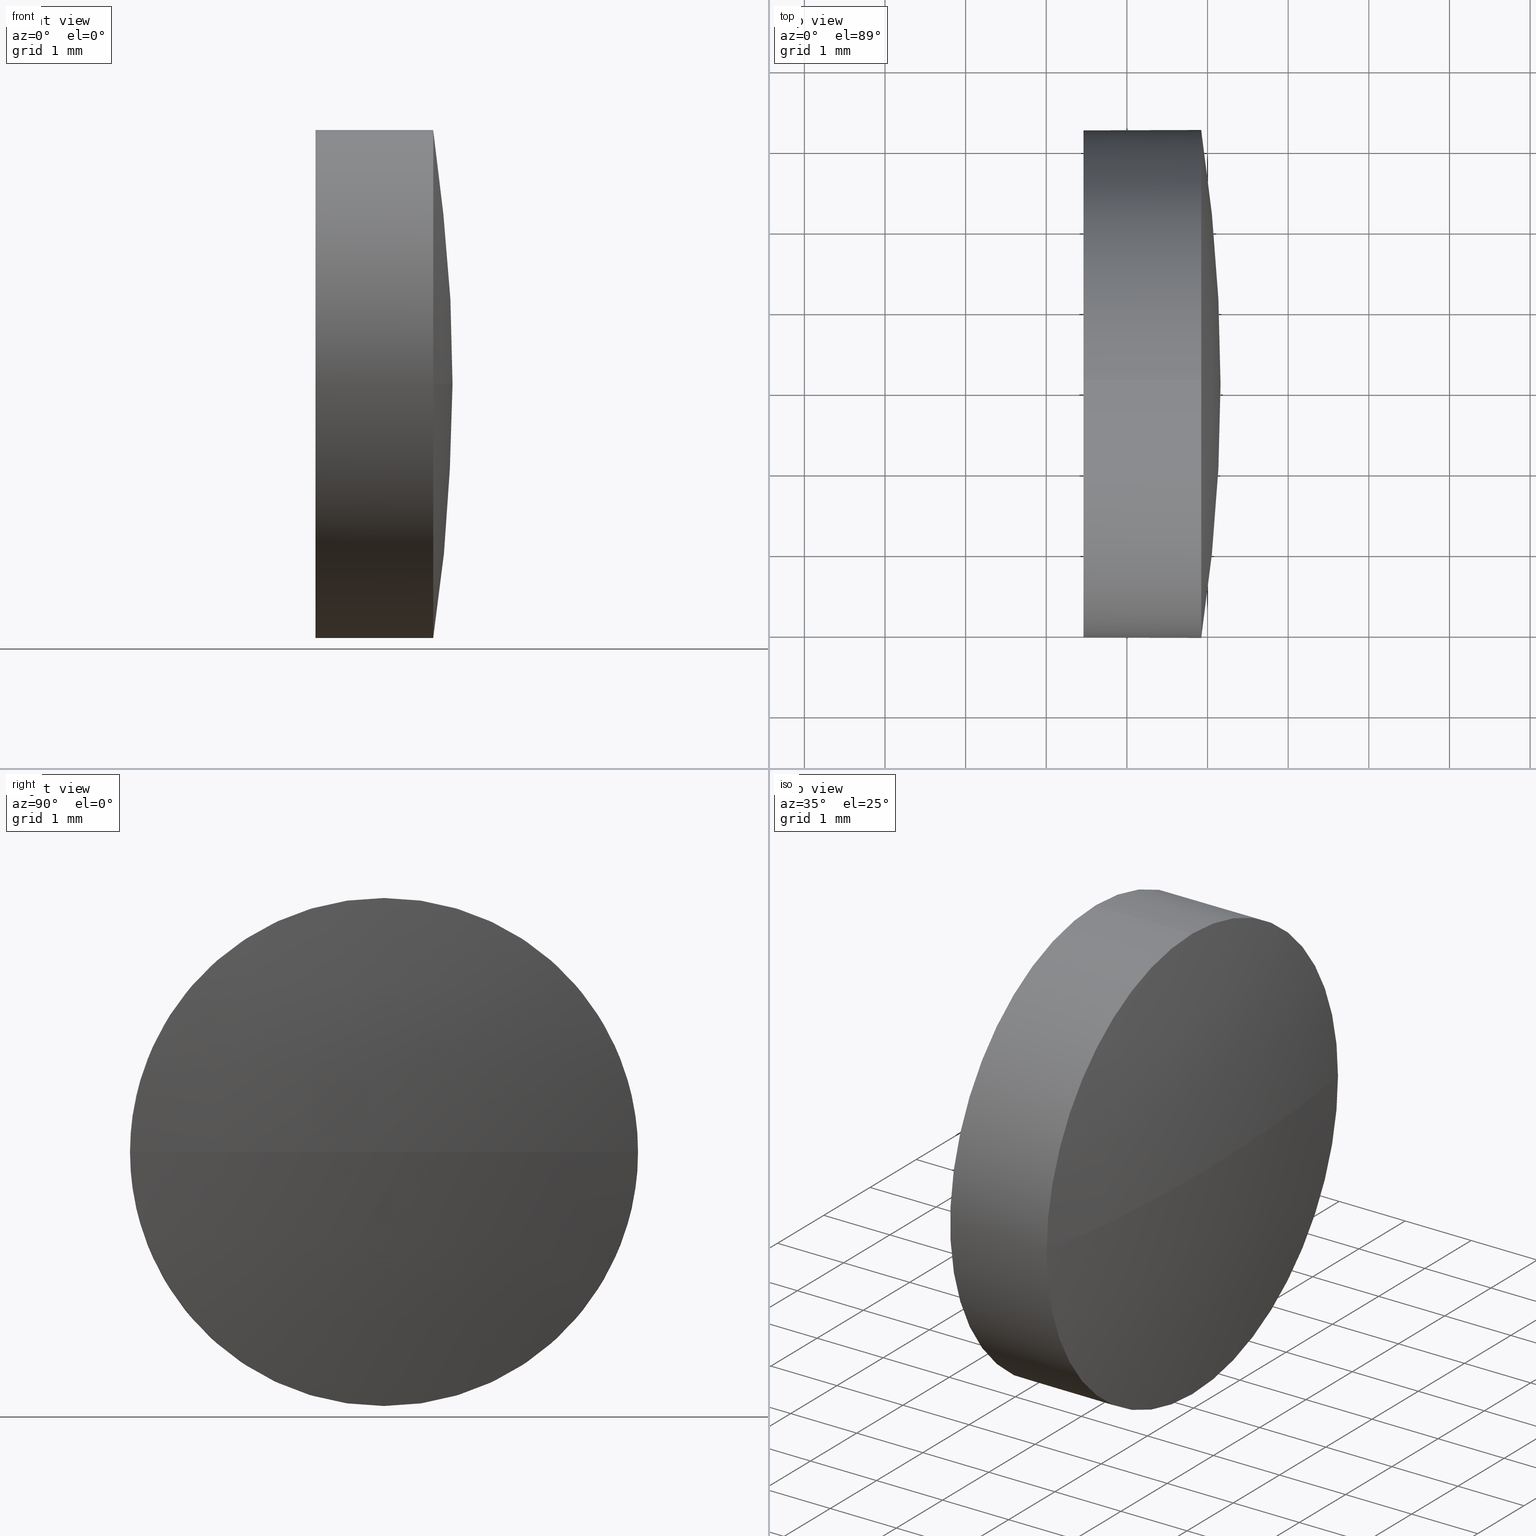
[diagram: canonical four-view strip — front | top / right | iso, engineering-drawing reading convention]
A machine part, canonical four-view strip (front | top / right | iso — engineering-drawing reading convention). The complete STEP part file that produces these views, byte-faithful:
ISO-10303-21;
HEADER;
FILE_DESCRIPTION (( 'STEP AP214' ),
    '1' );
FILE_NAME ('100184.STEP',
    '2019-05-21T03:44:40',
    ( '' ),
    ( '' ),
    'SwSTEP 2.0',
    'SolidWorks 2016',
    '' );
FILE_SCHEMA (( 'AUTOMOTIVE_DESIGN' ));
ENDSEC;

DATA;
#1 = DIRECTION ( 'NONE',  ( 0.0000000000000000000, 1.224646799147353200E-016, -1.000000000000000000 ) ) ;
#2 =( GEOMETRIC_REPRESENTATION_CONTEXT ( 3 ) GLOBAL_UNCERTAINTY_ASSIGNED_CONTEXT ( ( #32 ) ) GLOBAL_UNIT_ASSIGNED_CONTEXT ( ( #64, #61, #165 ) ) REPRESENTATION_CONTEXT ( 'NONE', 'WORKASPACE' ) );
#3 = PRODUCT_DEFINITION_CONTEXT ( 'detailed design', #77, 'design' ) ;
#4 = DIRECTION ( 'NONE',  ( 0.0000000000000000000, 0.0000000000000000000, 1.000000000000000000 ) ) ;
#5 = PRODUCT_DEFINITION_FORMATION_WITH_SPECIFIED_SOURCE ( '�κ�', '', #21, .NOT_KNOWN. ) ;
#6 = DIRECTION ( 'NONE',  ( -0.0000000000000000000, 0.0000000000000000000, -1.000000000000000000 ) ) ;
#7 = ORIENTED_EDGE ( 'NONE', *, *, #140, .T. ) ;
#8 = CARTESIAN_POINT ( 'NONE',  ( 439.9211293306011600, 24.08364198256748500, 0.0000000000000000000 ) ) ;
#9 = SURFACE_STYLE_USAGE ( .BOTH. , #37 ) ;
#10 = DIRECTION ( 'NONE',  ( -1.000000000000000000, -0.0000000000000000000, -0.0000000000000000000 ) ) ;
#11 = AXIS2_PLACEMENT_3D ( 'NONE', #87, #109, #35 ) ;
#12 = FACE_OUTER_BOUND ( 'NONE', #65, .T. ) ;
#13 = AXIS2_PLACEMENT_3D ( 'NONE', #8, #49, #176 ) ;
#14 =( NAMED_UNIT ( * ) SI_UNIT ( $, .STERADIAN. ) SOLID_ANGLE_UNIT ( ) );
#15 = CIRCLE ( 'NONE', #97, 3.149999999999999900 ) ;
#16 = PRODUCT_DEFINITION ( 'δ֪', '', #5, #3 ) ;
#17 =( NAMED_UNIT ( * ) PLANE_ANGLE_UNIT ( ) SI_UNIT ( $, .RADIAN. ) );
#18 = VERTEX_POINT ( 'NONE', #60 ) ;
#19 = FACE_OUTER_BOUND ( 'NONE', #89, .T. ) ;
#20 = ORIENTED_EDGE ( 'NONE', *, *, #94, .T. ) ;
#21 = PRODUCT ( '100184', '100184', '', ( #30 ) ) ;
#22 = CYLINDRICAL_SURFACE ( 'NONE', #23, 3.149999999999999900 ) ;
#23 = AXIS2_PLACEMENT_3D ( 'NONE', #166, #119, #137 ) ;
#24 = ORIENTED_EDGE ( 'NONE', *, *, #90, .T. ) ;
#25 = FACE_OUTER_BOUND ( 'NONE', #147, .T. ) ;
#26 = CARTESIAN_POINT ( 'NONE',  ( 438.4611293306011200, 24.08364198256748500, 0.0000000000000000000 ) ) ;
#27 = CARTESIAN_POINT ( 'NONE',  ( 437.6554189180591800, 24.08364198256748500, 3.149999999999999900 ) ) ;
#28 = DIRECTION ( 'NONE',  ( -1.000000000000000000, -0.0000000000000000000, -0.0000000000000000000 ) ) ;
#29 = ORIENTED_EDGE ( 'NONE', *, *, #82, .F. ) ;
#30 = PRODUCT_CONTEXT ( 'NONE', #171, 'mechanical' ) ;
#31 = ADVANCED_FACE ( 'NONE', ( #185 ), #159, .T. ) ;
#32 = UNCERTAINTY_MEASURE_WITH_UNIT (LENGTH_MEASURE( 1.000000000000000100E-005 ), #64, 'distance_accuracy_value', 'NONE');
#33 = PRODUCT_DEFINITION_SHAPE ( 'NONE', 'NONE',  #16 ) ;
#34 = VERTEX_POINT ( 'NONE', #163 ) ;
#35 = DIRECTION ( 'NONE',  ( 0.0000000000000000000, 0.0000000000000000000, 1.000000000000000000 ) ) ;
#36 = CARTESIAN_POINT ( 'NONE',  ( 439.9211293306011600, 24.08364198256748500, 3.149999999999999900 ) ) ;
#37 = SURFACE_SIDE_STYLE ('',( #43 ) ) ;
#38 = ORIENTED_EDGE ( 'NONE', *, *, #41, .F. ) ;
#39 = ORIENTED_EDGE ( 'NONE', *, *, #94, .F. ) ;
#40 = UNCERTAINTY_MEASURE_WITH_UNIT (LENGTH_MEASURE( 1.000000000000000100E-005 ), #88, 'distance_accuracy_value', 'NONE');
#41 = EDGE_CURVE ( 'NONE', #34, #181, #81, .T. ) ;
#42 = EDGE_LOOP ( 'NONE', ( #72, #59 ) ) ;
#43 = SURFACE_STYLE_FILL_AREA ( #177 ) ;
#44 = EDGE_CURVE ( 'NONE', #132, #155, #122, .T. ) ;
#45 = CARTESIAN_POINT ( 'NONE',  ( 419.3692543306010500, 24.08364198256733200, 0.0000000000000000000 ) ) ;
#46 = DIRECTION ( 'NONE',  ( 0.0000000000000000000, 0.0000000000000000000, 1.000000000000000000 ) ) ;
#47 = CARTESIAN_POINT ( 'NONE',  ( 419.3692543306010500, 24.08364198256733200, 0.0000000000000000000 ) ) ;
#48 = ORIENTED_EDGE ( 'NONE', *, *, #44, .F. ) ;
#49 = DIRECTION ( 'NONE',  ( -1.000000000000000000, -0.0000000000000000000, -0.0000000000000000000 ) ) ;
#50 = SPHERICAL_SURFACE ( 'NONE', #126, 20.79187500000012500 ) ;
#51 =( GEOMETRIC_REPRESENTATION_CONTEXT ( 3 ) GLOBAL_UNCERTAINTY_ASSIGNED_CONTEXT ( ( #178 ) ) GLOBAL_UNIT_ASSIGNED_CONTEXT ( ( #55, #17, #14 ) ) REPRESENTATION_CONTEXT ( 'NONE', 'WORKASPACE' ) );
#52 = DIRECTION ( 'NONE',  ( -1.000000000000000000, -0.0000000000000000000, -0.0000000000000000000 ) ) ;
#53 = PRODUCT_RELATED_PRODUCT_CATEGORY ( 'part', '', ( #21 ) ) ;
#54 = ORIENTED_EDGE ( 'NONE', *, *, #108, .T. ) ;
#55 =( LENGTH_UNIT ( ) NAMED_UNIT ( * ) SI_UNIT ( .MILLI., .METRE. ) );
#56 = ADVANCED_FACE ( 'NONE', ( #12 ), #50, .T. ) ;
#57 = VECTOR ( 'NONE', #180, 1000.000000000000000 ) ;
#58 = CARTESIAN_POINT ( 'NONE',  ( 437.6554189180591800, 24.08364198256748500, 0.0000000000000000000 ) ) ;
#59 = ORIENTED_EDGE ( 'NONE', *, *, #143, .T. ) ;
#60 = CARTESIAN_POINT ( 'NONE',  ( 438.4611293306011200, 24.08364198256748500, -3.149999999999999900 ) ) ;
#61 =( NAMED_UNIT ( * ) PLANE_ANGLE_UNIT ( ) SI_UNIT ( $, .RADIAN. ) );
#62 = CARTESIAN_POINT ( 'NONE',  ( 437.6554189180591800, 24.08364198256748500, -3.149999999999999900 ) ) ;
#63 = CARTESIAN_POINT ( 'NONE',  ( 438.4611293306011200, 24.08364198256748500, 0.0000000000000000000 ) ) ;
#64 =( LENGTH_UNIT ( ) NAMED_UNIT ( * ) SI_UNIT ( .MILLI., .METRE. ) );
#65 = EDGE_LOOP ( 'NONE', ( #38, #24, #48, #39 ) ) ;
#66 = COLOUR_RGB ( '',1.000000000000000000, 1.000000000000000000, 1.000000000000000000 ) ;
#67 = ADVANCED_FACE ( 'NONE', ( #19 ), #86, .T. ) ;
#68 = CARTESIAN_POINT ( 'NONE',  ( 0.0000000000000000000, 0.0000000000000000000, 0.0000000000000000000 ) ) ;
#69 = ORIENTED_EDGE ( 'NONE', *, *, #41, .T. ) ;
#70 = CIRCLE ( 'NONE', #11, 3.149999999999999900 ) ;
#71 = CIRCLE ( 'NONE', #13, 3.149999999999999900 ) ;
#72 = ORIENTED_EDGE ( 'NONE', *, *, #82, .T. ) ;
#73 = VERTEX_POINT ( 'NONE', #103 ) ;
#74 = DIRECTION ( 'NONE',  ( -0.0000000000000000000, 0.0000000000000000000, 1.000000000000000000 ) ) ;
#75 = CARTESIAN_POINT ( 'NONE',  ( 439.9211293306011600, 24.08364198256748500, 0.0000000000000000000 ) ) ;
#76 = SHAPE_DEFINITION_REPRESENTATION ( #33, #114 ) ;
#77 = APPLICATION_CONTEXT ( 'automotive_design' ) ;
#78 = COLOUR_RGB ( '',1.000000000000000000, 1.000000000000000000, 1.000000000000000000 ) ;
#79 = ORIENTED_EDGE ( 'NONE', *, *, #143, .F. ) ;
#80 = CARTESIAN_POINT ( 'NONE',  ( 419.3692543306010500, 24.08364198256733200, 0.0000000000000000000 ) ) ;
#81 = CIRCLE ( 'NONE', #169, 20.79187500000012900 ) ;
#82 = EDGE_CURVE ( 'NONE', #173, #18, #133, .T. ) ;
#83 = EDGE_LOOP ( 'NONE', ( #186, #69, #153, #100 ) ) ;
#84 = EDGE_CURVE ( 'NONE', #73, #181, #15, .T. ) ;
#85 = DIRECTION ( 'NONE',  ( -1.000000000000000000, -0.0000000000000000000, -0.0000000000000000000 ) ) ;
#86 = CYLINDRICAL_SURFACE ( 'NONE', #138, 3.149999999999999900 ) ;
#87 = CARTESIAN_POINT ( 'NONE',  ( 438.4611293306011200, 24.08364198256748500, 0.0000000000000000000 ) ) ;
#88 =( LENGTH_UNIT ( ) NAMED_UNIT ( * ) SI_UNIT ( .MILLI., .METRE. ) );
#89 = EDGE_LOOP ( 'NONE', ( #7, #54, #29, #162, #116 ) ) ;
#90 = EDGE_CURVE ( 'NONE', #34, #155, #110, .T. ) ;
#91 = SURFACE_STYLE_USAGE ( .BOTH. , #111 ) ;
#92 = CIRCLE ( 'NONE', #146, 3.149999999999999900 ) ;
#93 = APPLICATION_PROTOCOL_DEFINITION ( 'draft international standard', 'automotive_design', 1998, #77 ) ;
#94 = EDGE_CURVE ( 'NONE', #181, #132, #92, .T. ) ;
#95 =( GEOMETRIC_REPRESENTATION_CONTEXT ( 3 ) GLOBAL_UNCERTAINTY_ASSIGNED_CONTEXT ( ( #40 ) ) GLOBAL_UNIT_ASSIGNED_CONTEXT ( ( #88, #182, #127 ) ) REPRESENTATION_CONTEXT ( 'NONE', 'WORKASPACE' ) );
#96 = LINE ( 'NONE', #62, #57 ) ;
#97 = AXIS2_PLACEMENT_3D ( 'NONE', #167, #10, #168 ) ;
#98 = DIRECTION ( 'NONE',  ( 0.0000000000000000000, 1.000000000000000000, 1.224646799147353000E-016 ) ) ;
#99 = DIRECTION ( 'NONE',  ( -1.000000000000000000, -0.0000000000000000000, -0.0000000000000000000 ) ) ;
#100 = ORIENTED_EDGE ( 'NONE', *, *, #140, .F. ) ;
#101 = FACE_OUTER_BOUND ( 'NONE', #42, .T. ) ;
#102 = DIRECTION ( 'NONE',  ( 0.0000000000000000000, 1.000000000000000000, 0.0000000000000000000 ) ) ;
#103 = CARTESIAN_POINT ( 'NONE',  ( 439.9211293306011600, 24.08364198256748500, -3.149999999999999900 ) ) ;
#104 = PLANE ( 'NONE',  #134 ) ;
#105 = DIRECTION ( 'NONE',  ( 0.0000000000000000000, 0.0000000000000000000, -1.000000000000000000 ) ) ;
#106 = DIRECTION ( 'NONE',  ( 0.0000000000000000000, 0.0000000000000000000, 1.000000000000000000 ) ) ;
#107 = DIRECTION ( 'NONE',  ( 1.000000000000000000, 0.0000000000000000000, 0.0000000000000000000 ) ) ;
#108 = EDGE_CURVE ( 'NONE', #73, #18, #96, .T. ) ;
#109 = DIRECTION ( 'NONE',  ( -1.000000000000000000, -0.0000000000000000000, -0.0000000000000000000 ) ) ;
#110 = CIRCLE ( 'NONE', #112, 20.79187500000012500 ) ;
#111 = SURFACE_SIDE_STYLE ('',( #164 ) ) ;
#112 = AXIS2_PLACEMENT_3D ( 'NONE', #47, #74, #107 ) ;
#113 = STYLED_ITEM ( 'NONE', ( #135 ), #114 ) ;
#114 = ADVANCED_BREP_SHAPE_REPRESENTATION ( '100184', ( #145, #131 ), #51 ) ;
#115 = CLOSED_SHELL ( 'NONE', ( #67, #31, #56, #128, #157 ) ) ;
#116 = ORIENTED_EDGE ( 'NONE', *, *, #44, .T. ) ;
#117 = DIRECTION ( 'NONE',  ( -0.0000000000000000000, 0.0000000000000000000, -1.000000000000000000 ) ) ;
#118 = CARTESIAN_POINT ( 'NONE',  ( 419.3692543306010500, 24.08364198256733200, 0.0000000000000000000 ) ) ;
#119 = DIRECTION ( 'NONE',  ( -1.000000000000000000, -0.0000000000000000000, -0.0000000000000000000 ) ) ;
#120 = DIRECTION ( 'NONE',  ( 1.000000000000000000, 0.0000000000000000000, 0.0000000000000000000 ) ) ;
#121 = PRESENTATION_LAYER_ASSIGNMENT (  '', '', ( #151 ) ) ;
#122 = CIRCLE ( 'NONE', #184, 3.149999999999999900 ) ;
#123 = CARTESIAN_POINT ( 'NONE',  ( 439.9211293306011600, 20.93364198256734500, -3.857637417314148900E-016 ) ) ;
#124 = DIRECTION ( 'NONE',  ( 0.0000000000000000000, 0.0000000000000000000, 1.000000000000000000 ) ) ;
#125 = ORIENTED_EDGE ( 'NONE', *, *, #108, .F. ) ;
#126 = AXIS2_PLACEMENT_3D ( 'NONE', #80, #117, #148 ) ;
#127 =( NAMED_UNIT ( * ) SI_UNIT ( $, .STERADIAN. ) SOLID_ANGLE_UNIT ( ) );
#128 = ADVANCED_FACE ( 'NONE', ( #25 ), #22, .T. ) ;
#129 = PRESENTATION_LAYER_ASSIGNMENT (  '', '', ( #113 ) ) ;
#130 = PRESENTATION_STYLE_ASSIGNMENT (( #9 ) ) ;
#131 = AXIS2_PLACEMENT_3D ( 'NONE', #68, #124, #141 ) ;
#132 = VERTEX_POINT ( 'NONE', #36 ) ;
#133 = CIRCLE ( 'NONE', #175, 3.149999999999999900 ) ;
#134 = AXIS2_PLACEMENT_3D ( 'NONE', #26, #120, #105 ) ;
#135 = PRESENTATION_STYLE_ASSIGNMENT (( #91 ) ) ;
#136 = CARTESIAN_POINT ( 'NONE',  ( 439.9211293306011600, 27.23364198256747300, 0.0000000000000000000 ) ) ;
#137 = DIRECTION ( 'NONE',  ( 0.0000000000000000000, 0.0000000000000000000, 1.000000000000000000 ) ) ;
#138 = AXIS2_PLACEMENT_3D ( 'NONE', #58, #161, #4 ) ;
#139 = FILL_AREA_STYLE_COLOUR ( '', #78 ) ;
#140 = EDGE_CURVE ( 'NONE', #155, #73, #71, .T. ) ;
#141 = DIRECTION ( 'NONE',  ( 1.000000000000000000, 0.0000000000000000000, 0.0000000000000000000 ) ) ;
#142 = APPLICATION_PROTOCOL_DEFINITION ( 'draft international standard', 'automotive_design', 1998, #171 ) ;
#143 = EDGE_CURVE ( 'NONE', #18, #173, #70, .T. ) ;
#144 = VECTOR ( 'NONE', #85, 1000.000000000000000 ) ;
#145 = MANIFOLD_SOLID_BREP ( '��ת2', #115 ) ;
#146 = AXIS2_PLACEMENT_3D ( 'NONE', #75, #28, #106 ) ;
#147 = EDGE_LOOP ( 'NONE', ( #125, #149, #20, #170, #79 ) ) ;
#148 = DIRECTION ( 'NONE',  ( 0.0000000000000000000, 1.000000000000000000, 0.0000000000000000000 ) ) ;
#149 = ORIENTED_EDGE ( 'NONE', *, *, #84, .T. ) ;
#150 = LINE ( 'NONE', #27, #144 ) ;
#151 = STYLED_ITEM ( 'NONE', ( #130 ), #145 ) ;
#152 = FILL_AREA_STYLE_COLOUR ( '', #66 ) ;
#153 = ORIENTED_EDGE ( 'NONE', *, *, #84, .F. ) ;
#154 = DIRECTION ( 'NONE',  ( 0.0000000000000000000, 0.0000000000000000000, 1.000000000000000000 ) ) ;
#155 = VERTEX_POINT ( 'NONE', #136 ) ;
#156 = CARTESIAN_POINT ( 'NONE',  ( 438.4611293306011200, 24.08364198256748500, 3.149999999999999900 ) ) ;
#157 = ADVANCED_FACE ( 'NONE', ( #101 ), #104, .F. ) ;
#158 = AXIS2_PLACEMENT_3D ( 'NONE', #45, #6, #102 ) ;
#159 = SPHERICAL_SURFACE ( 'NONE', #158, 20.79187500000012500 ) ;
#160 = CARTESIAN_POINT ( 'NONE',  ( 439.9211293306011600, 24.08364198256748500, 0.0000000000000000000 ) ) ;
#161 = DIRECTION ( 'NONE',  ( -1.000000000000000000, -0.0000000000000000000, -0.0000000000000000000 ) ) ;
#162 = ORIENTED_EDGE ( 'NONE', *, *, #172, .F. ) ;
#163 = CARTESIAN_POINT ( 'NONE',  ( 440.1611293306011700, 24.08364198256733200, 0.0000000000000000000 ) ) ;
#164 = SURFACE_STYLE_FILL_AREA ( #183 ) ;
#165 =( NAMED_UNIT ( * ) SI_UNIT ( $, .STERADIAN. ) SOLID_ANGLE_UNIT ( ) );
#166 = CARTESIAN_POINT ( 'NONE',  ( 437.6554189180591800, 24.08364198256748500, 0.0000000000000000000 ) ) ;
#167 = CARTESIAN_POINT ( 'NONE',  ( 439.9211293306011600, 24.08364198256748500, 0.0000000000000000000 ) ) ;
#168 = DIRECTION ( 'NONE',  ( 0.0000000000000000000, 0.0000000000000000000, 1.000000000000000000 ) ) ;
#169 = AXIS2_PLACEMENT_3D ( 'NONE', #118, #1, #98 ) ;
#170 = ORIENTED_EDGE ( 'NONE', *, *, #172, .T. ) ;
#171 = APPLICATION_CONTEXT ( 'automotive_design' ) ;
#172 = EDGE_CURVE ( 'NONE', #132, #173, #150, .T. ) ;
#173 = VERTEX_POINT ( 'NONE', #156 ) ;
#174 = MECHANICAL_DESIGN_GEOMETRIC_PRESENTATION_REPRESENTATION (  '', ( #113 ), #95 ) ;
#175 = AXIS2_PLACEMENT_3D ( 'NONE', #63, #52, #154 ) ;
#176 = DIRECTION ( 'NONE',  ( 0.0000000000000000000, 0.0000000000000000000, 1.000000000000000000 ) ) ;
#177 = FILL_AREA_STYLE ('',( #152 ) ) ;
#178 = UNCERTAINTY_MEASURE_WITH_UNIT (LENGTH_MEASURE( 1.000000000000000100E-005 ), #55, 'distance_accuracy_value', 'NONE');
#179 = MECHANICAL_DESIGN_GEOMETRIC_PRESENTATION_REPRESENTATION (  '', ( #151 ), #2 ) ;
#180 = DIRECTION ( 'NONE',  ( -1.000000000000000000, -0.0000000000000000000, -0.0000000000000000000 ) ) ;
#181 = VERTEX_POINT ( 'NONE', #123 ) ;
#182 =( NAMED_UNIT ( * ) PLANE_ANGLE_UNIT ( ) SI_UNIT ( $, .RADIAN. ) );
#183 = FILL_AREA_STYLE ('',( #139 ) ) ;
#184 = AXIS2_PLACEMENT_3D ( 'NONE', #160, #99, #46 ) ;
#185 = FACE_OUTER_BOUND ( 'NONE', #83, .T. ) ;
#186 = ORIENTED_EDGE ( 'NONE', *, *, #90, .F. ) ;
ENDSEC;
END-ISO-10303-21;
